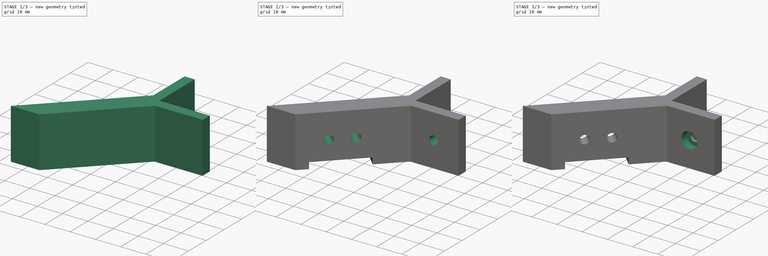
[diagram: build sequence overview — one tinted view per stage of 3, left to right]
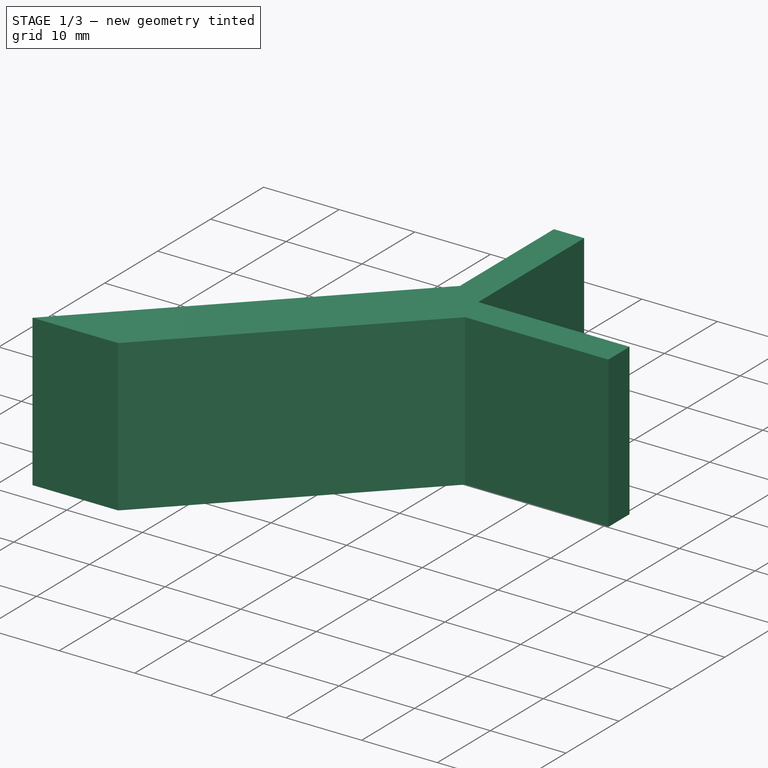
[diagram: stage 1 of 3 — iso view after this stage's code; geometry added in this stage tinted green]
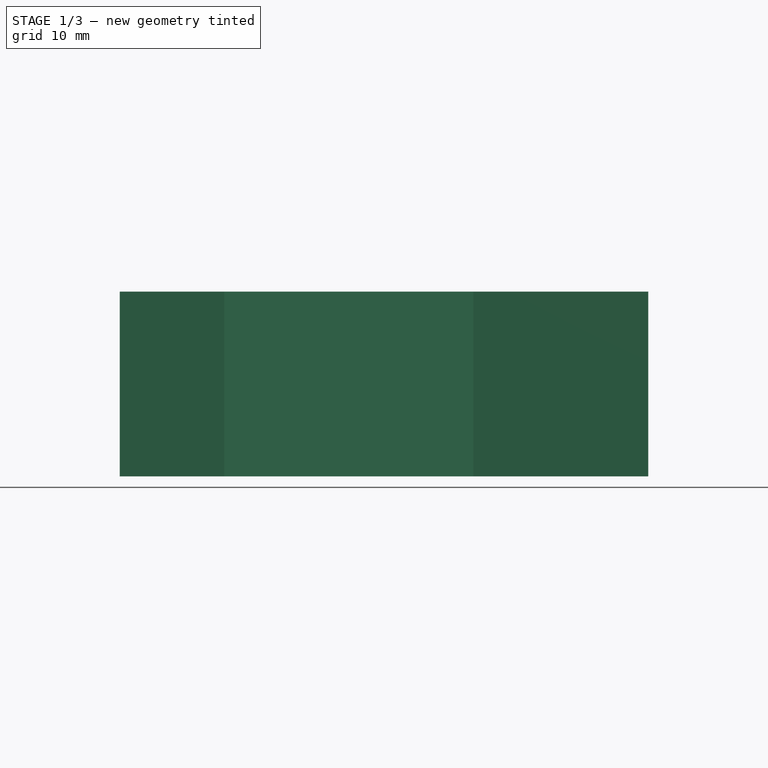
[diagram: stage 1 of 3 — front view after this stage's code; geometry added in this stage tinted green]
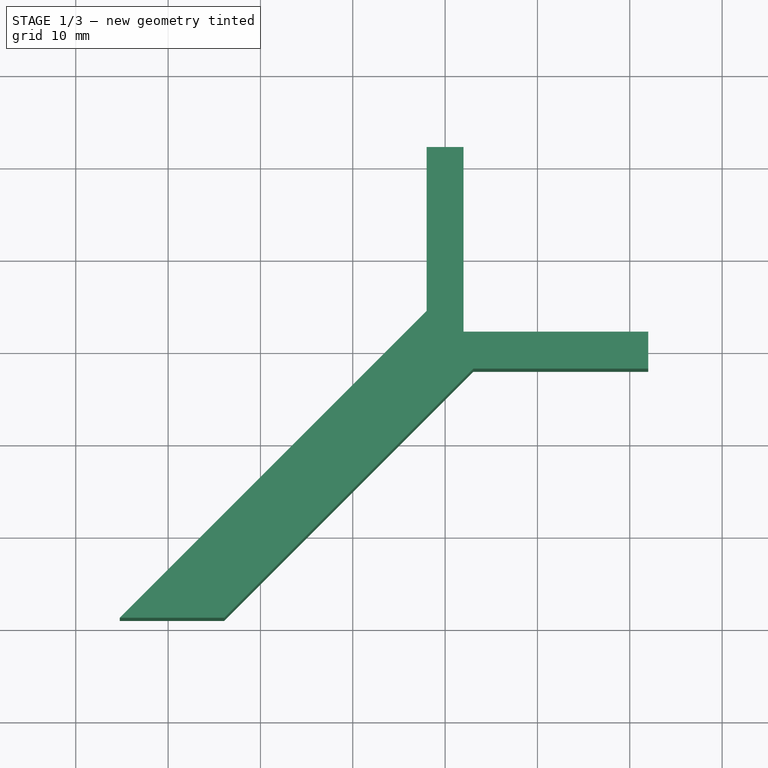
[diagram: stage 1 of 3 — top view after this stage's code; geometry added in this stage tinted green]
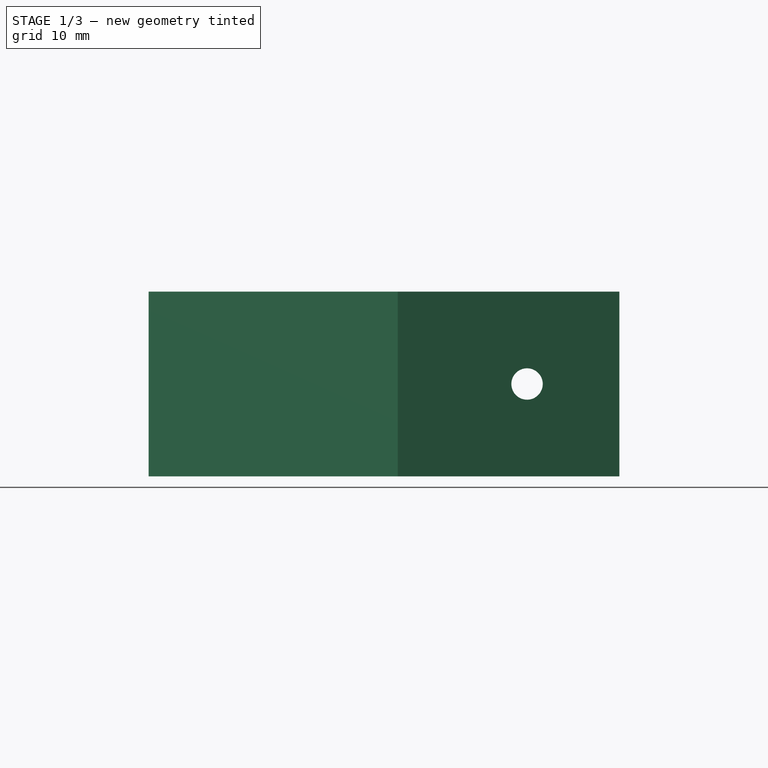
[diagram: stage 1 of 3 — right view after this stage's code; geometry added in this stage tinted green]
FCSTD DOCUMENT  (FreeCAD 0.18.4R)
Label: support_display
License: All rights reserved
LicenseURL: http://en.wikipedia.org/wiki/All_rights_reserved
objects: Sketcher::SketchObject×7, PartDesign::Pocket×6, PartDesign::Pad×1, PartDesign::Body×1
note: 22 computed .brp shape members not serialized (recipe doc carries the construction recipe); baked Part::Feature solids carry a one-line shape summary decoded from their .brp

FEATURE [Sketcher::SketchObject] Sketch
  MapMode = 5
  Support = -> [XY_Plane]
  sketch-geometry (9):
    g0: LineSegment StartX=-2 StartY=22 StartZ=0 EndX=2 EndY=22 EndZ=0
    g1: LineSegment StartX=2 StartY=22 StartZ=0 EndX=2 EndY=2 EndZ=0
    g2: LineSegment StartX=2 StartY=2 StartZ=0 EndX=22 EndY=2 EndZ=0
    g3: LineSegment StartX=22 StartY=2 StartZ=0 EndX=22 EndY=-2 EndZ=0
    g4: LineSegment StartX=22 StartY=-2 StartZ=0 EndX=3.06504 EndY=-2 EndZ=0
    g5: LineSegment StartX=3.06504 StartY=-2 StartZ=0 EndX=-23.9203 EndY=-28.9854 EndZ=0
    g6: LineSegment StartX=-35.234 StartY=-28.9854 StartZ=0 EndX=-2 EndY=4.24867 EndZ=0
    g7: LineSegment StartX=-2 StartY=4.24867 StartZ=0 EndX=-2 EndY=22 EndZ=0
    g8: LineSegment StartX=-35.234 StartY=-28.9854 StartZ=0 EndX=-23.9203 EndY=-28.9854 EndZ=0
  constraints (24):
    c: Coincident(g0,g1)
    c: Vertical(g1)
    c: Coincident(g1,g2)
    c: Horizontal(g2)
    c: Coincident(g2,g3)
    c: Coincident(g3,g4)
    c: Coincident(g4,g5)
    c: Coincident(g6,g7)
    c: Coincident(g7,g0)
    c: Vertical(g7)
    c: Symmetric(g0,g0,g-2)
    c: Symmetric(g2,g3,g-1)
    c: Horizontal(g4,g3)
    c: Angle(g7,g6) = 2.35619
    c: Angle(g5,g4) = 2.35619
    c: DistanceX(g0,g0) = 4
    c: DistanceY(g3,g3) = 4
    c: DistanceY(g1,g1) = 20
    c: DistanceX(g2,g2) = 20
    c: Distance(g6) = 47
    c: Coincident(g8,g6)
    c: Coincident(g8,g5)
    c: Horizontal(g8)
    c: Distance(g5,g6) = 8
FEATURE [PartDesign::Pad] Pad
  Length = 20
  Length2 = 100
  Profile = -> Sketch
  Type = 0
FEATURE [Sketcher::SketchObject] Sketch001
  ExternalGeometry = -> [Pad]
  MapMode = 5
  Placement = pos=(-2,0,0) rot=(0.57735,-0.57735,-0.57735;2.0944rad)
  Support = -> [Pad]
  sketch-geometry (1):
    g0: Circle CenterX=-12 CenterY=10 CenterZ=0 NormalX=0 NormalY=0 NormalZ=1 AngleXU=0 Radius=1.7
  constraints (3):
    c: Distance(g0,g-3) = 10
    c: Distance(g0,g-4) = 10
    c: Radius(g0) = 1.7
FEATURE [PartDesign::Pocket] Pocket
  BaseFeature = -> Pad
  Length = 5
  Length2 = 100
  Profile = -> Sketch001
  Type = 0
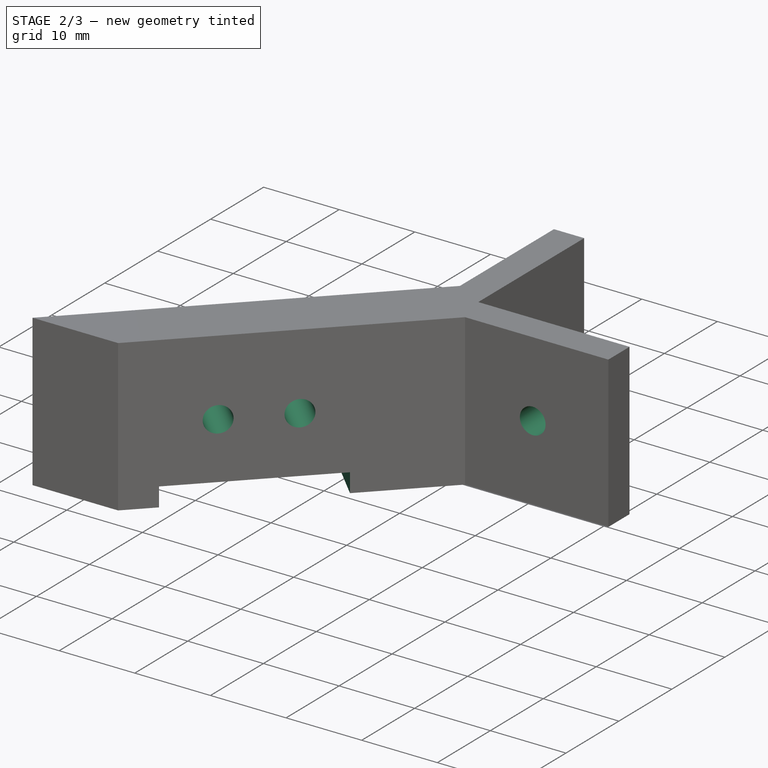
[diagram: stage 2 of 3 — iso view after this stage's code; geometry added in this stage tinted green]
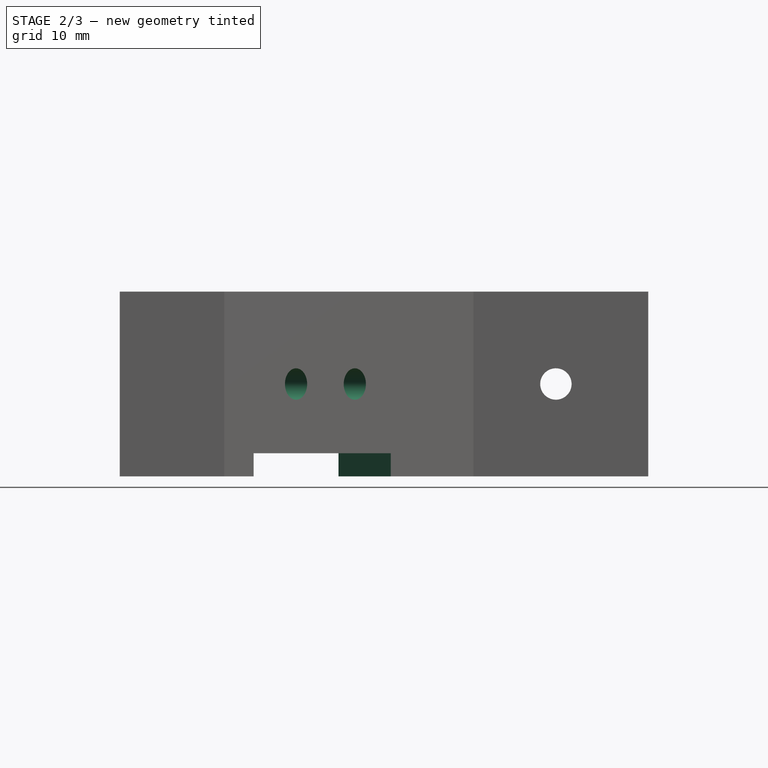
[diagram: stage 2 of 3 — front view after this stage's code; geometry added in this stage tinted green]
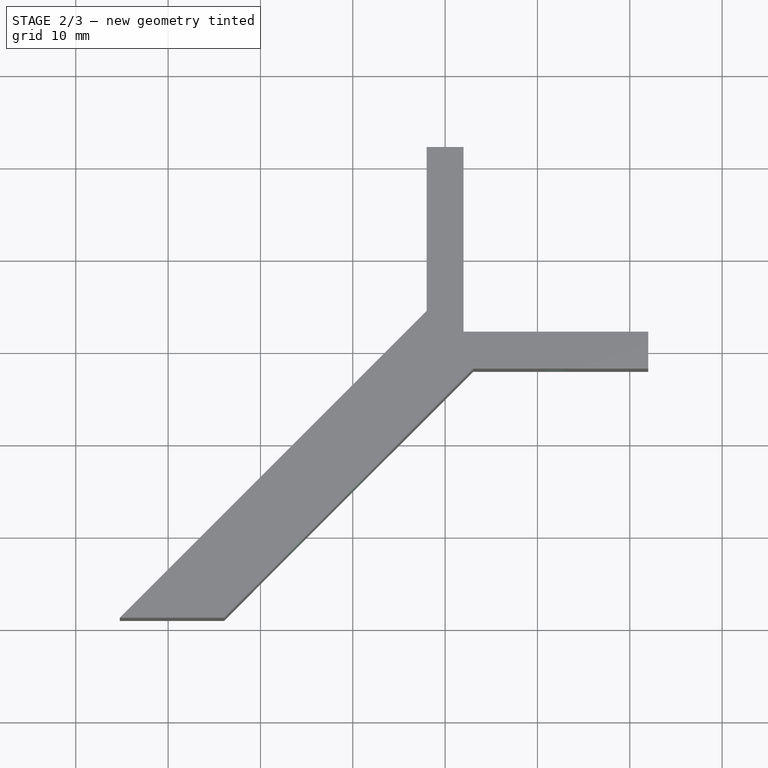
[diagram: stage 2 of 3 — top view after this stage's code; geometry added in this stage tinted green]
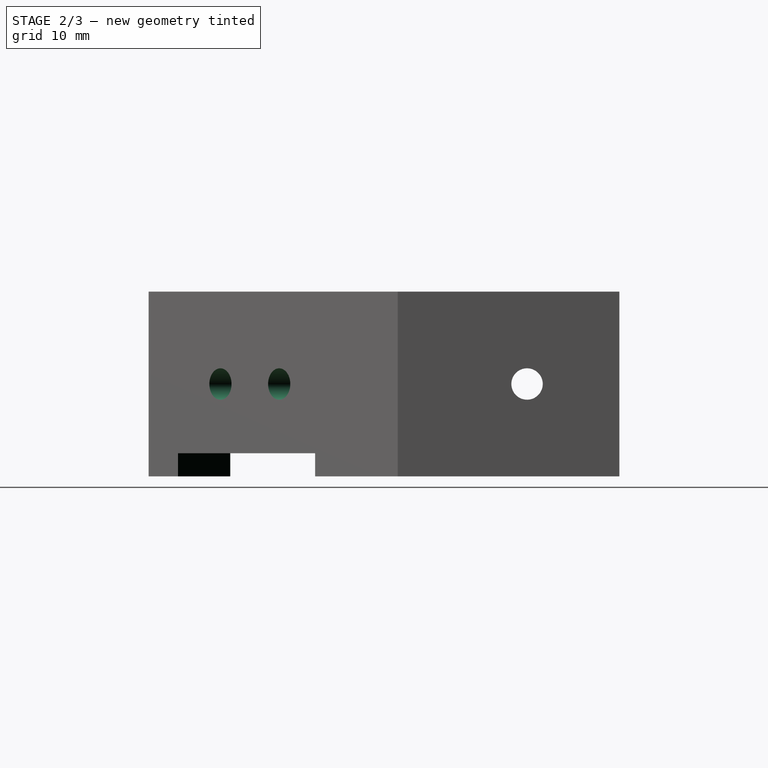
[diagram: stage 2 of 3 — right view after this stage's code; geometry added in this stage tinted green]
FEATURE [Sketcher::SketchObject] Sketch002
  ExternalGeometry = -> [Pocket]
  MapMode = 5
  Placement = pos=(0,-2,0) rot=(1,0,0;1.5708rad)
  Support = -> [Pocket]
  sketch-geometry (1):
    g0: Circle CenterX=12 CenterY=10 CenterZ=0 NormalX=0 NormalY=0 NormalZ=1 AngleXU=0 Radius=1.7
  constraints (3):
    c: Distance(g0,g-3) = 10
    c: Distance(g0,g-4) = 10
    c: Radius(g0) = 1.7
FEATURE [PartDesign::Pocket] Pocket001
  BaseFeature = -> Pocket
  Length = 5
  Length2 = 100
  Profile = -> Sketch002
  Type = 0
FEATURE [Sketcher::SketchObject] Sketch003
  ExternalGeometry = -> [Pocket001]
  MapMode = 5
  Placement = pos=(-3.12433,3.12433,0) rot=(-0.281085,0.678598,0.678598;3.68962rad)
  Support = -> [Pocket001]
  sketch-geometry (6):
    g0: LineSegment StartX=11.91 StartY=0 StartZ=0 EndX=32.91 EndY=0 EndZ=0
    g1: LineSegment StartX=32.91 StartY=0 StartZ=0 EndX=32.91 EndY=2.5 EndZ=0
    g2: LineSegment StartX=32.91 StartY=2.5 StartZ=0 EndX=11.91 EndY=2.5 EndZ=0
    g3: LineSegment StartX=11.91 StartY=2.5 StartZ=0 EndX=11.91 EndY=0 EndZ=0
    g4: Circle CenterX=17.41 CenterY=10 CenterZ=0 NormalX=0 NormalY=0 NormalZ=1 AngleXU=0 Radius=1.7
    g5: Circle CenterX=26.41 CenterY=10 CenterZ=0 NormalX=0 NormalY=0 NormalZ=1 AngleXU=0 Radius=1.7
  constraints (19):
    c: Coincident(g0,g1)
    c: Coincident(g1,g2)
    c: Coincident(g2,g3)
    c: Coincident(g3,g0)
    c: Horizontal(g0)
    c: Horizontal(g2)
    c: Vertical(g1)
    c: Vertical(g3)
    c: DistanceX(g0,g0) = 21
    c: DistanceY(g1,g1) = 2.5
    c: Distance(g1,g-5) = 12.5
    c: PointOnObject(g0,g-4)
    c: Radius(g5) = 1.7
    c: Radius(g4) = 1.7
    c: Distance(g-5) = 20
    c: Distance(g4,g-3) = 10
    c: Distance(g5,g-3) = 10
    c: Distance(g5,g-5) = 19
    c: Distance(g4,g-6) = 19
FEATURE [PartDesign::Pocket] Pocket002
  BaseFeature = -> Pocket001
  Length = 9
  Length2 = 100
  Profile = -> Sketch003
  Type = 0
FEATURE [Sketcher::SketchObject] Sketch004
  ExternalGeometry = -> [Pocket002]
  MapMode = 5
  Placement = pos=(-2,0,0) rot=(0.57735,-0.57735,-0.57735;2.0944rad)
  Support = -> [Pocket002]
  sketch-geometry (1):
    g0: Circle CenterX=-12 CenterY=10 CenterZ=0 NormalX=0 NormalY=0 NormalZ=1 AngleXU=0 Radius=3.2
  constraints (2):
    c: Coincident(g0,g-3)
    c: Radius(g0) = 3.2
FEATURE [PartDesign::Pocket] Pocket003
  BaseFeature = -> Pocket002
  Length = 3
  Length2 = 100
  Profile = -> Sketch004
  Type = 0
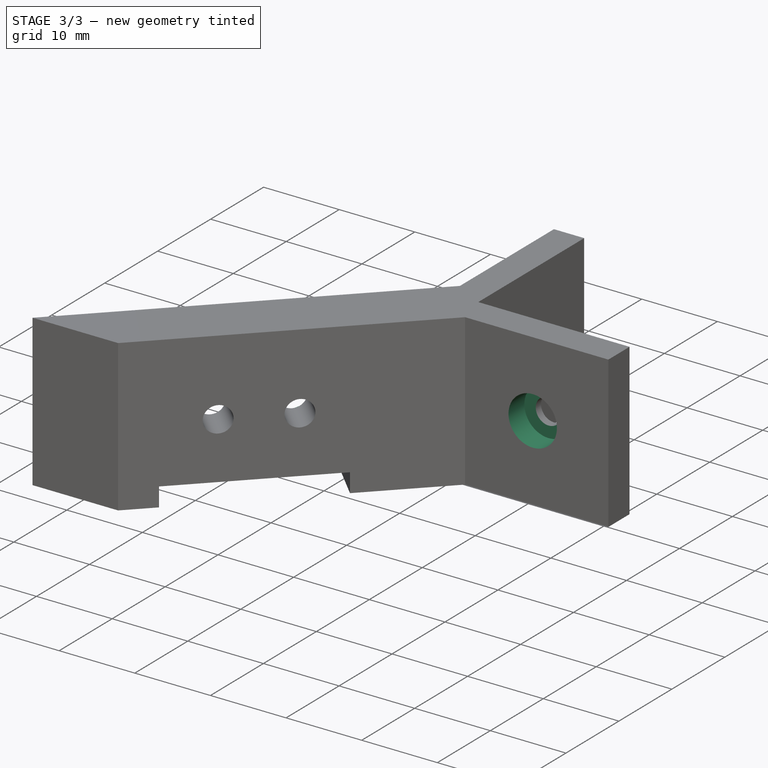
[diagram: stage 3 of 3 — iso view after this stage's code; geometry added in this stage tinted green]
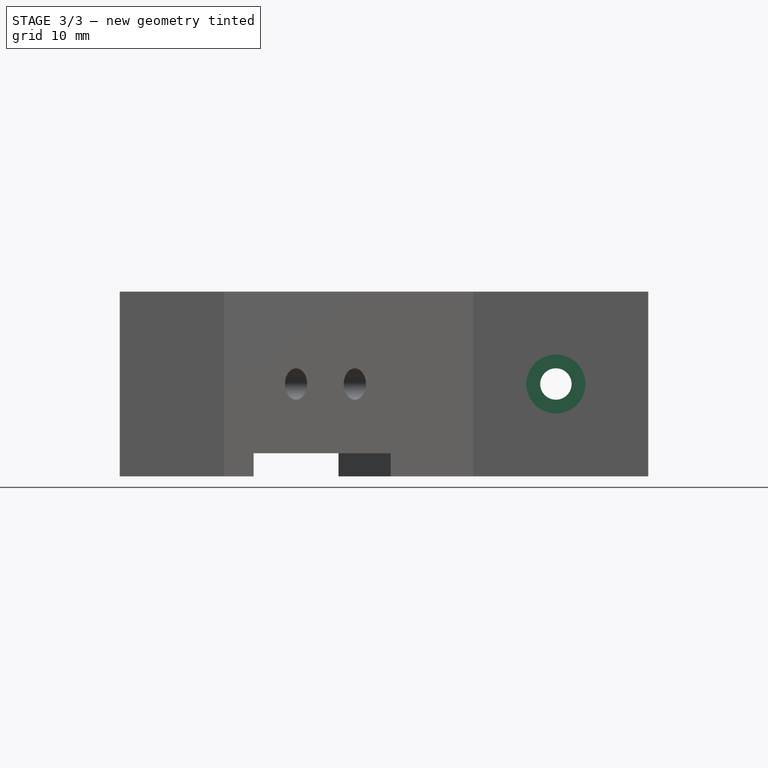
[diagram: stage 3 of 3 — front view after this stage's code; geometry added in this stage tinted green]
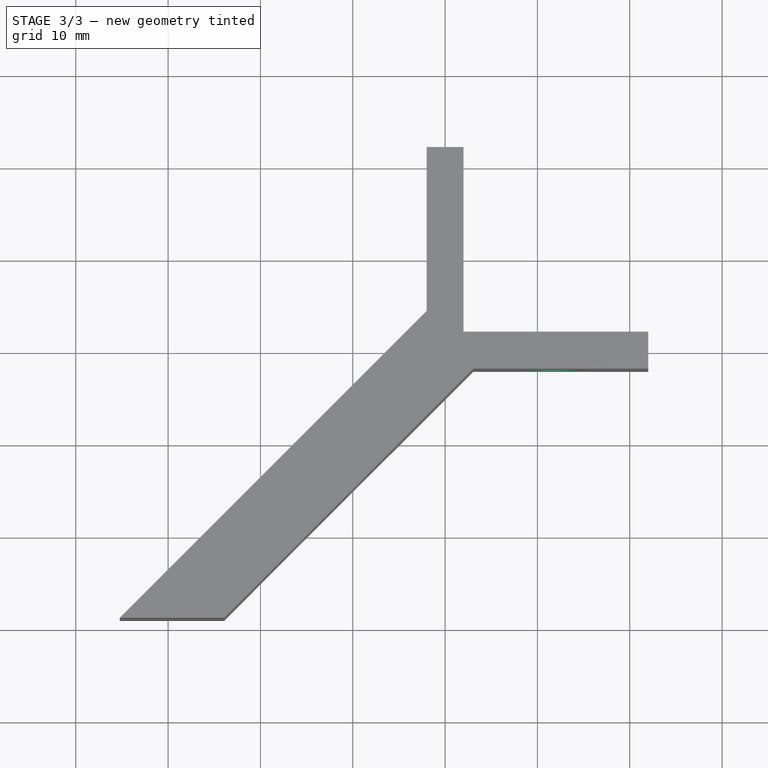
[diagram: stage 3 of 3 — top view after this stage's code; geometry added in this stage tinted green]
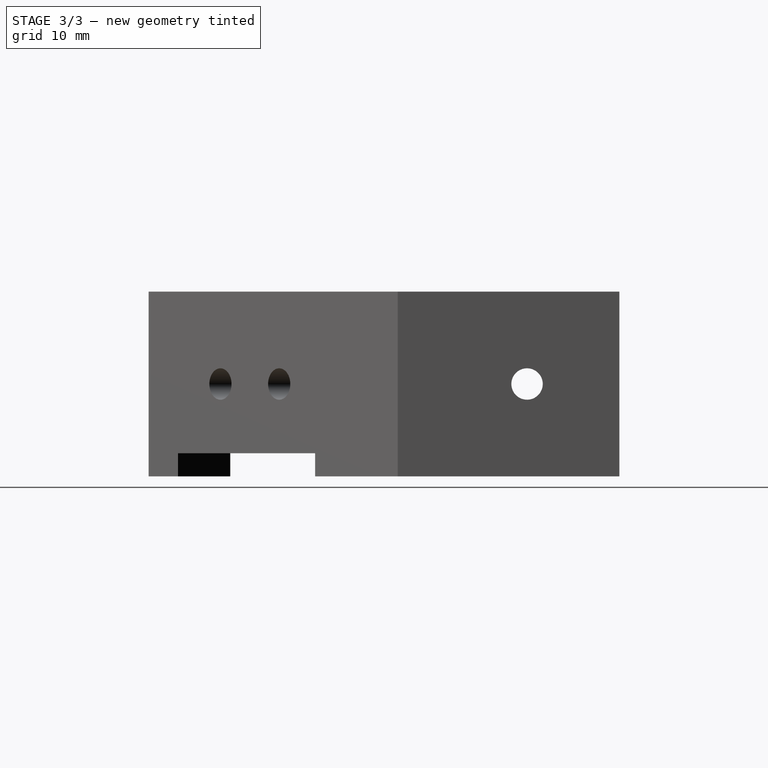
[diagram: stage 3 of 3 — right view after this stage's code; geometry added in this stage tinted green]
FEATURE [Sketcher::SketchObject] Sketch005
  ExternalGeometry = -> [Pocket003]
  MapMode = 5
  Placement = pos=(0,-2,0) rot=(1,0,0;1.5708rad)
  Support = -> [Pocket003]
  sketch-geometry (1):
    g0: Circle CenterX=12 CenterY=10 CenterZ=0 NormalX=0 NormalY=0 NormalZ=1 AngleXU=0 Radius=3.2
  constraints (2):
    c: Coincident(g0,g-3)
    c: Radius(g0) = 3.2
FEATURE [PartDesign::Pocket] Pocket004
  BaseFeature = -> Pocket003
  Length = 3
  Length2 = 100
  Profile = -> Sketch005
  Type = 0
FEATURE [Sketcher::SketchObject] Sketch006
  ExternalGeometry = -> [Pocket004]
  MapMode = 5
  Placement = pos=(-3.12433,3.12433,0) rot=(-0.281085,0.678598,0.678598;3.68962rad)
  Support = -> [Pocket004]
  sketch-geometry (2):
    g0: Circle CenterX=17.41 CenterY=10 CenterZ=0 NormalX=0 NormalY=0 NormalZ=1 AngleXU=0 Radius=3.2
    g1: Circle CenterX=26.3682 CenterY=9.83436 CenterZ=0 NormalX=0 NormalY=0 NormalZ=1 AngleXU=0 Radius=3.2
  constraints (2):
    c: Radius(g1) = 3.2
    c: Radius(g0) = 3.2
FEATURE [PartDesign::Pocket] Pocket005
  BaseFeature = -> Pocket004
  Length = 3
  Length2 = 100
  Profile = -> Sketch006
  Type = 0
FEATURE [PartDesign::Body] Body
  Group = -> [Sketch,Pad,Sketch001,Pocket,Sketch002,Pocket001,Sketch003,Pocket002,Sketch004,Pocket003,Sketch005,Pocket004,Sketch006,Pocket005]
  Origin = -> Origin
  Tip = -> Pocket005
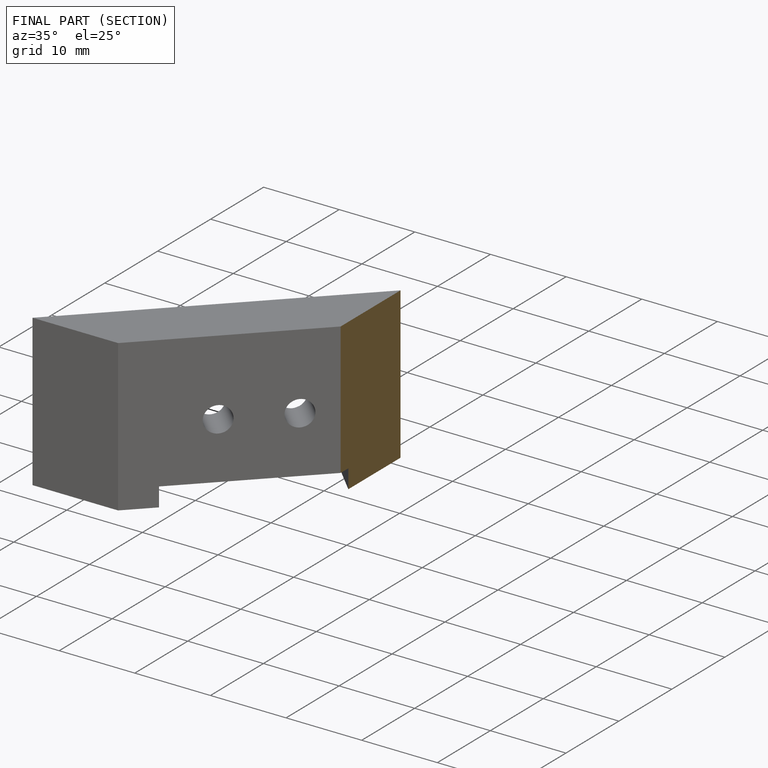
[diagram: finished part — half-section view (interior)]
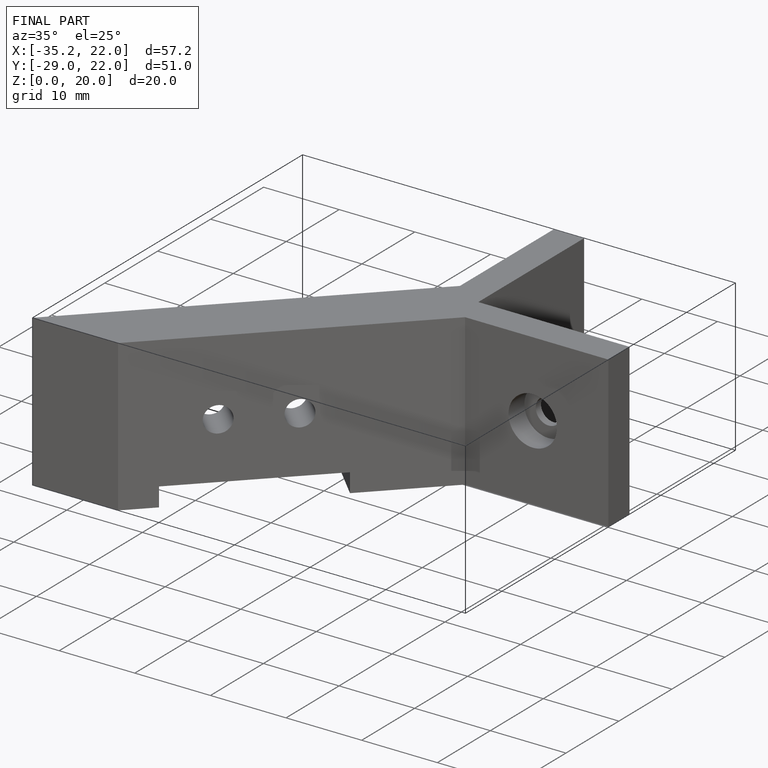
[diagram: finished part — iso view with bounding-box wireframe]
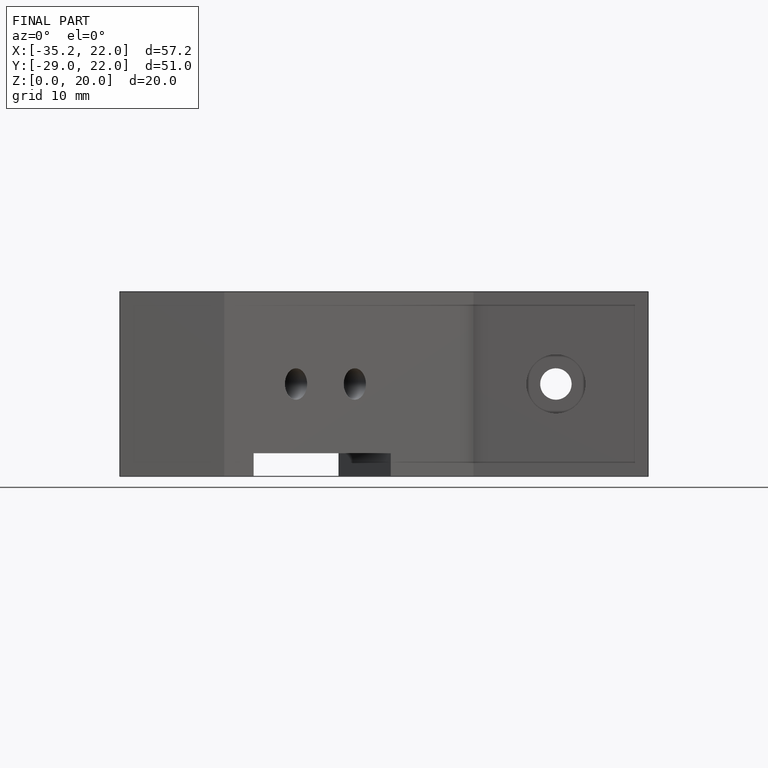
[diagram: finished part — front view with bounding-box wireframe]
